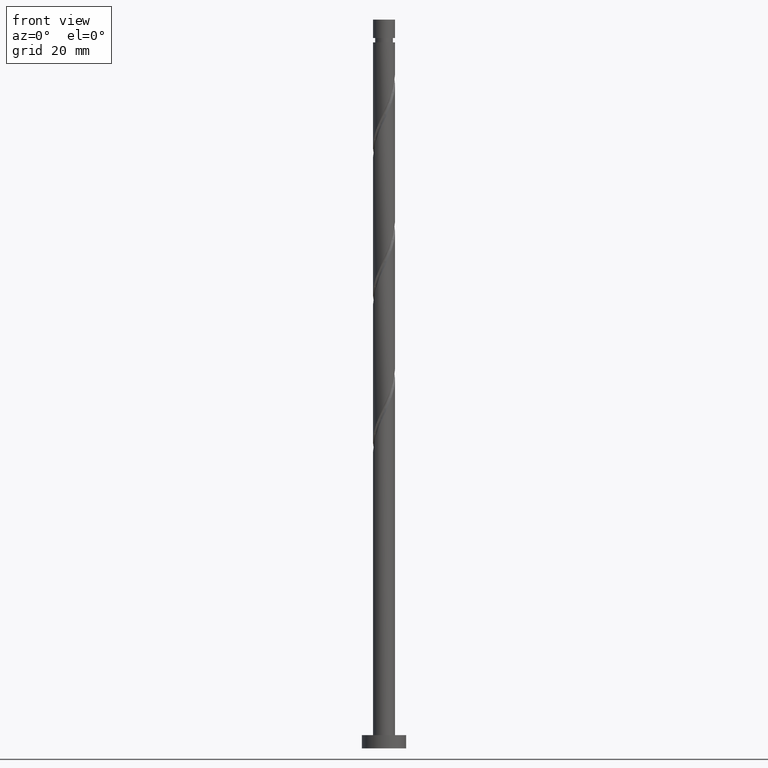
[diagram: clean part render]
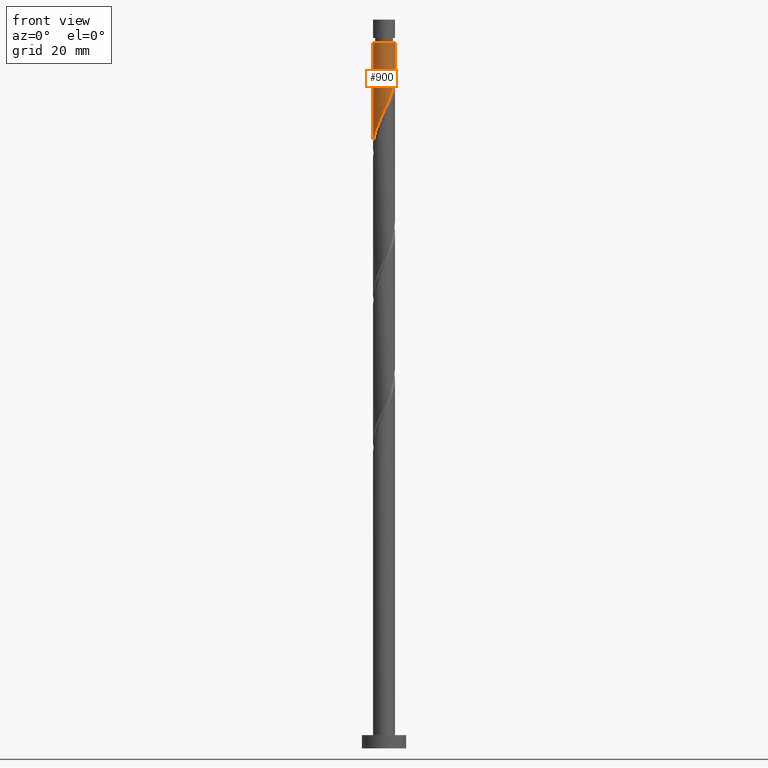
[diagram: same view with one face highlighted and labeled with its STEP entity id]
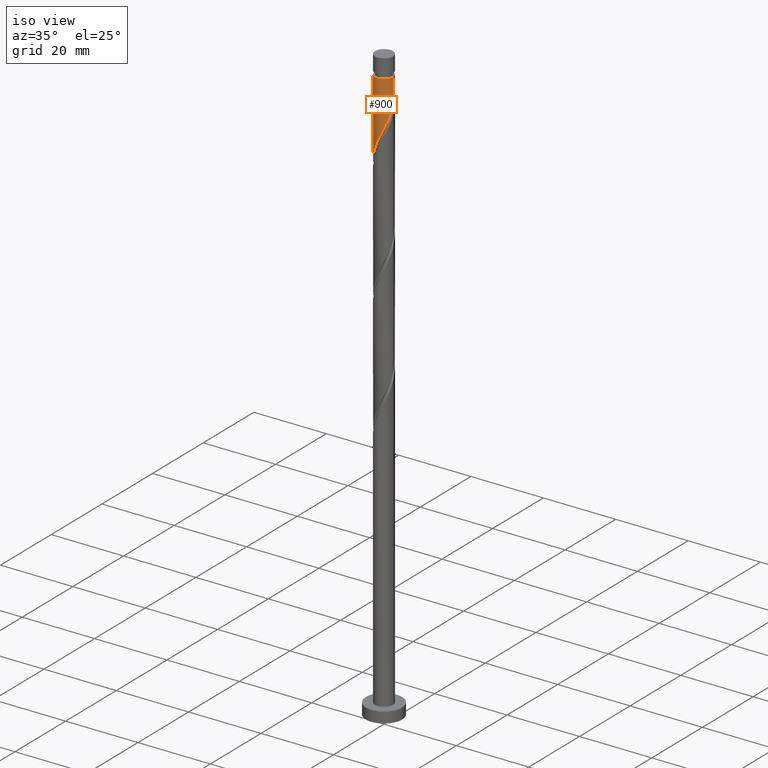
[diagram: same view with one face highlighted and labeled with its STEP entity id]
A machine part, front view. The second image highlights one B-rep face of the part: STEP entity #900.
A second angle (iso view) of the same face is appended — the face is thin or edge-on in the first view.
In plain terms, the highlighted cylindrical surface (edge-blend (fillet) strip) has radius 2.5 mm, axis along (-0, -0, -1).
Its self-contained STEP definition (entity closure, byte-faithful):
#22 = CARTESIAN_POINT ( 'NONE',  ( -1.114648691668404634, -2.237757425227747010, 141.7808703196818954 ) ) ;
#35 = CARTESIAN_POINT ( 'NONE',  ( -2.495279123588687309, -0.1535646293339472668, 136.2253147641262956 ) ) ;
#53 = FACE_OUTER_BOUND ( 'NONE', #1565, .T. ) ;
#62 = DIRECTION ( 'NONE',  ( -1.000000000000000000, 0.000000000000000000, 0.000000000000000000 ) ) ;
#165 = CARTESIAN_POINT ( 'NONE',  ( -0.8200423376424321731, -2.384503709418416051, 142.4753147641262956 ) ) ;
#167 = CARTESIAN_POINT ( 'NONE',  ( 2.500000000000000000, 3.061616997868383141E-16, 165.0000000000000000 ) ) ;
#174 = CARTESIAN_POINT ( 'NONE',  ( -2.084192795893799133, -1.380630431920283341, 139.0030925419040670 ) ) ;
#235 = DIRECTION ( 'NONE',  ( -0.000000000000000000, -0.000000000000000000, -1.000000000000000000 ) ) ;
#247 = CARTESIAN_POINT ( 'NONE',  ( 2.450000000000000178, -0.4974937185533115924, 151.5030925419040670 ) ) ;
#252 = VERTEX_POINT ( 'NONE', #385 ) ;
#264 = EDGE_CURVE ( 'NONE', #1741, #252, #321, .T. ) ;
#266 = CARTESIAN_POINT ( 'NONE',  ( 2.499999999999992895, 3.061616997868378704E-16, 159.8364258752374099 ) ) ;
#270 = CARTESIAN_POINT ( 'NONE',  ( 1.655019618953359251, -1.902429351286330172, 148.0308703196818385 ) ) ;
#312 = CARTESIAN_POINT ( 'NONE',  ( -2.499999999999992895, 0.000000000000000000, 159.8364258752374099 ) ) ;
#321 = LINE ( 'NONE', #167, #1638 ) ;
#385 = CARTESIAN_POINT ( 'NONE',  ( 2.500000000000000000, 2.990756888724025745E-16, 152.5666591971141202 ) ) ;
#409 = CIRCLE ( 'NONE', #1281, 2.499999999999992895 ) ;
#420 = ORIENTED_EDGE ( 'NONE', *, *, #1159, .F. ) ;
#431 = CARTESIAN_POINT ( 'NONE',  ( 1.106241244887206321, -2.265956240501270980, 146.6419814307929528 ) ) ;
#467 = CARTESIAN_POINT ( 'NONE',  ( 0.000000000000000000, 0.000000000000000000, 159.8364258752374099 ) ) ;
#470 = ORIENTED_EDGE ( 'NONE', *, *, #506, .T. ) ;
#483 = CYLINDRICAL_SURFACE ( 'NONE', #598, 2.500000000000000000 ) ;
#506 = EDGE_CURVE ( 'NONE', #1215, #1073, #1430, .T. ) ;
#514 = CARTESIAN_POINT ( 'NONE',  ( -1.655842198490353745, -1.873015379995218277, 140.3919814307929528 ) ) ;
#549 = DIRECTION ( 'NONE',  ( -1.000000000000000000, 0.000000000000000000, 0.000000000000000000 ) ) ;
#598 = AXIS2_PLACEMENT_3D ( 'NONE', #872, #235, #62 ) ;
#600 = EDGE_CURVE ( 'NONE', #1741, #1215, #409, .T. ) ;
#643 = CARTESIAN_POINT ( 'NONE',  ( -0.4974937185533114814, -2.450000000000000178, 143.1697592085707242 ) ) ;
#696 = CARTESIAN_POINT ( 'NONE',  ( 2.500000000000000444, -0.2512594538148037460, 152.0332328279248486 ) ) ;
#705 = DIRECTION ( 'NONE',  ( -0.000000000000000000, -0.000000000000000000, -1.000000000000000000 ) ) ;
#711 = CARTESIAN_POINT ( 'NONE',  ( -2.265956240501270980, -1.106241244887206321, 138.3086480974596384 ) ) ;
#778 = CARTESIAN_POINT ( 'NONE',  ( 0.1535646293339465729, -2.495279123588687309, 144.5586480974596100 ) ) ;
#807 = CARTESIAN_POINT ( 'NONE',  ( 2.237757425227745678, -1.114648691668405744, 150.1142036530151529 ) ) ;
#839 = CARTESIAN_POINT ( 'NONE',  ( 0.4820743581320850457, -2.475061956595791646, 145.2530925419040386 ) ) ;
#872 = CARTESIAN_POINT ( 'NONE',  ( 0.000000000000000000, 0.000000000000000000, 165.0000000000000000 ) ) ;
#900 = ADVANCED_FACE ( 'NONE', ( #53 ), #483, .T. ) ;
#915 = CARTESIAN_POINT ( 'NONE',  ( -1.409255045694377539, -2.091011141037078858, 141.0864258752374667 ) ) ;
#968 = CARTESIAN_POINT ( 'NONE',  ( 2.500000000000000000, 2.990756888724025745E-16, 152.5666591971141202 ) ) ;
#978 = CARTESIAN_POINT ( 'NONE',  ( -2.500000000000000444, -0.07685487914418152877, 136.0631562184755978 ) ) ;
#1002 = DIRECTION ( 'NONE',  ( -0.000000000000000000, -0.000000000000000000, -1.000000000000000000 ) ) ;
#1044 = ORIENTED_EDGE ( 'NONE', *, *, #600, .T. ) ;
#1048 = CARTESIAN_POINT ( 'NONE',  ( -1.902429351286330172, -1.655019618953359917, 139.6975369863485810 ) ) ;
#1059 = CARTESIAN_POINT ( 'NONE',  ( -2.500000000000000000, 6.056282699666153453E-15, 135.8999925304474914 ) ) ;
#1069 = CARTESIAN_POINT ( 'NONE',  ( 2.384503709418415607, -0.8200423376424331723, 150.8086480974596100 ) ) ;
#1073 = VERTEX_POINT ( 'NONE', #1059 ) ;
#1159 = EDGE_CURVE ( 'NONE', #252, #1073, #1370, .T. ) ;
#1169 = VECTOR ( 'NONE', #1408, 1000.000000000000000 ) ;
#1215 = VERTEX_POINT ( 'NONE', #312 ) ;
#1224 = ORIENTED_EDGE ( 'NONE', *, *, #264, .F. ) ;
#1240 = CARTESIAN_POINT ( 'NONE',  ( 1.380630431920282675, -2.084192795893800021, 147.3364258752374099 ) ) ;
#1258 = CARTESIAN_POINT ( 'NONE',  ( -2.475061956595791646, -0.4820743581320858229, 136.9197592085707811 ) ) ;
#1281 = AXIS2_PLACEMENT_3D ( 'NONE', #467, #1002, #549 ) ;
#1316 = CARTESIAN_POINT ( 'NONE',  ( 0.7941578015096458776, -2.370509098548529536, 145.9475369863484957 ) ) ;
#1368 = CARTESIAN_POINT ( 'NONE',  ( -0.1749450994641920665, -2.515496290581585193, 143.8642036530152097 ) ) ;
#1370 =( BOUNDED_CURVE ( )  B_SPLINE_CURVE ( 2, ( #968, #696, #247, #1069, #807, #1712, #1460, #270, #1240, #431, #1316, #839, #778, #1368, #643, #165, #22, #915, #514, #1048, #174, #711, #1507, #1258, #35, #978, #1642 ),
 .UNSPECIFIED., .F., .T. ) 
 B_SPLINE_CURVE_WITH_KNOTS ( ( 3, 2, 2, 2, 2, 2, 2, 2, 2, 2, 2, 2, 2, 3 ),
 ( 0.3045317669814462391, 0.3125000000000000000, 0.3229166666666666852, 0.3333333333333333148, 0.3437500000000000000, 0.3541666666666666852, 0.3645833333333333148, 0.3750000000000000000, 0.3854166666666666852, 0.3958333333333333148, 0.4062500000000000000, 0.4166666666666666852, 0.4270833333333333148, 0.4295317669814462946 ),
 .UNSPECIFIED. ) 
 CURVE ( )  GEOMETRIC_REPRESENTATION_ITEM ( )  RATIONAL_B_SPLINE_CURVE ( ( 0.9062941362546418356, 0.9031415850403459178, 0.9090909090909213841, 0.9013135103398396408, 0.9090909090909213841, 0.9013135103398396408, 0.9090909090909213841, 0.9013135103398396408, 0.9090909090909213841, 0.9013135103398396408, 0.9090909090909213841, 0.9013135103398396408, 0.9090909090909213841, 0.9013135103398396408, 0.9090909090909213841, 0.9013135103398396408, 0.9090909090909213841, 0.9013135103398396408, 0.9090909090909213841, 0.9013135103398396408, 0.9090909090909213841, 0.9013135103398396408, 0.9090909090909213841, 0.9013135103398396408, 0.9090909090909213841, 0.9072628343904152182, 0.9062941362546418356 ) ) 
 REPRESENTATION_ITEM ( '' )  );
#1408 = DIRECTION ( 'NONE',  ( -0.000000000000000000, -0.000000000000000000, -1.000000000000000000 ) ) ;
#1430 = LINE ( 'NONE', #1535, #1169 ) ;
#1460 = CARTESIAN_POINT ( 'NONE',  ( 1.873015379995218277, -1.655842198490353745, 148.7253147641262956 ) ) ;
#1507 = CARTESIAN_POINT ( 'NONE',  ( -2.370509098548529536, -0.7941578015096460996, 137.6142036530151529 ) ) ;
#1535 = CARTESIAN_POINT ( 'NONE',  ( -2.500000000000000000, 0.000000000000000000, 165.0000000000000000 ) ) ;
#1565 = EDGE_LOOP ( 'NONE', ( #1224, #1044, #470, #420 ) ) ;
#1638 = VECTOR ( 'NONE', #705, 1000.000000000000000 ) ;
#1642 = CARTESIAN_POINT ( 'NONE',  ( -2.500000000000000000, 6.056282699666153453E-15, 135.8999925304474914 ) ) ;
#1712 = CARTESIAN_POINT ( 'NONE',  ( 2.091011141037078414, -1.409255045694378206, 149.4197592085707811 ) ) ;
#1741 = VERTEX_POINT ( 'NONE', #266 ) ;